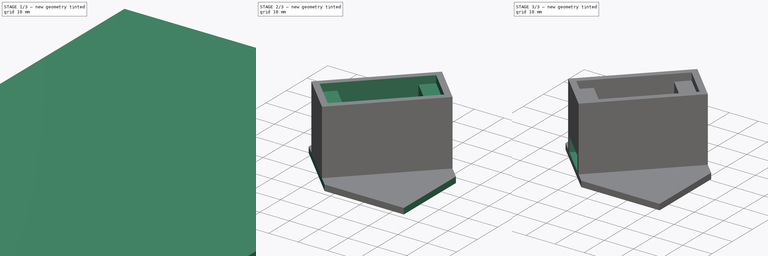
[diagram: build sequence overview — one tinted view per stage of 3, left to right]
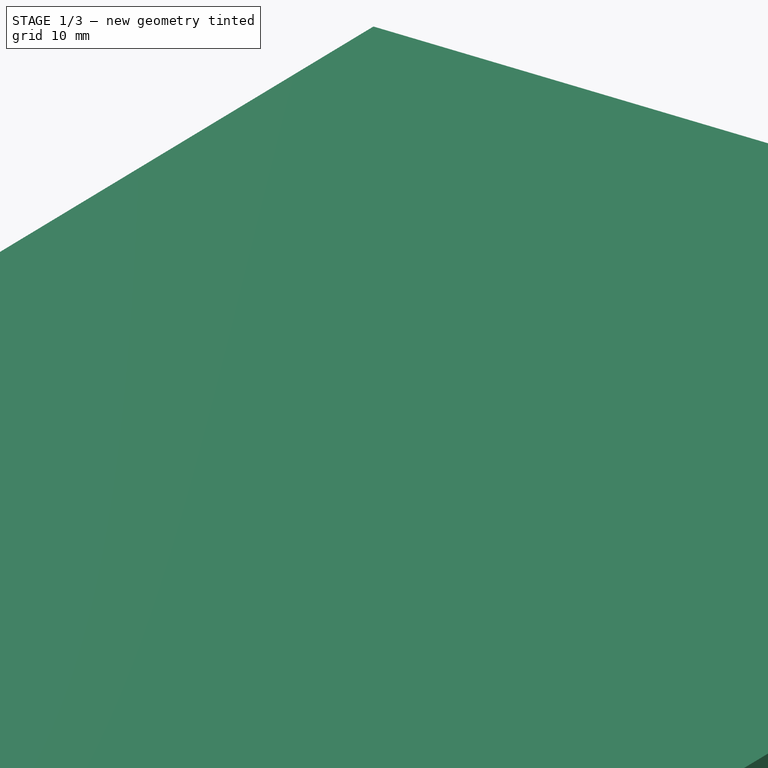
[diagram: stage 1 of 3 — iso view after this stage's code; geometry added in this stage tinted green]
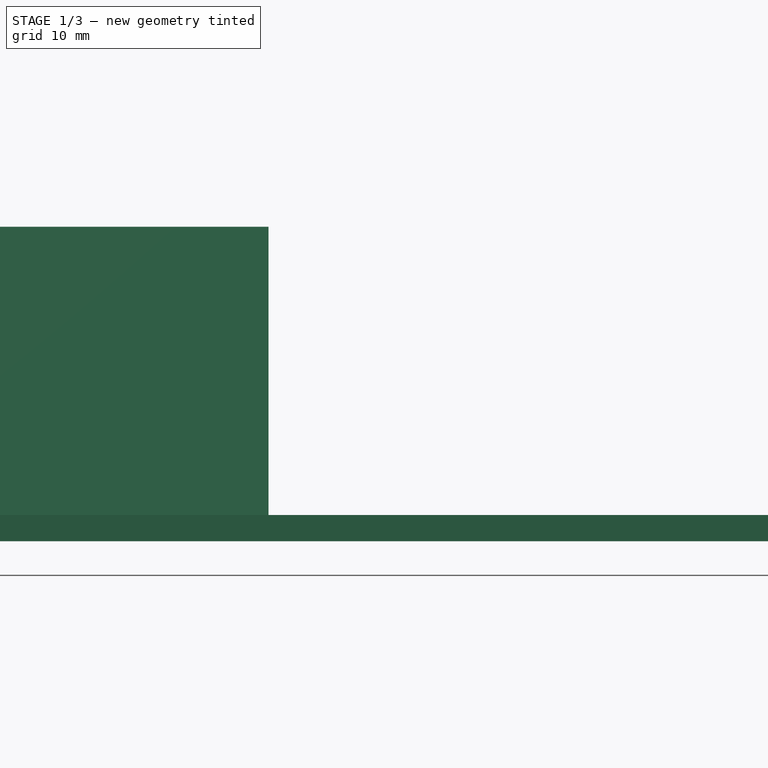
[diagram: stage 1 of 3 — front view after this stage's code; geometry added in this stage tinted green]
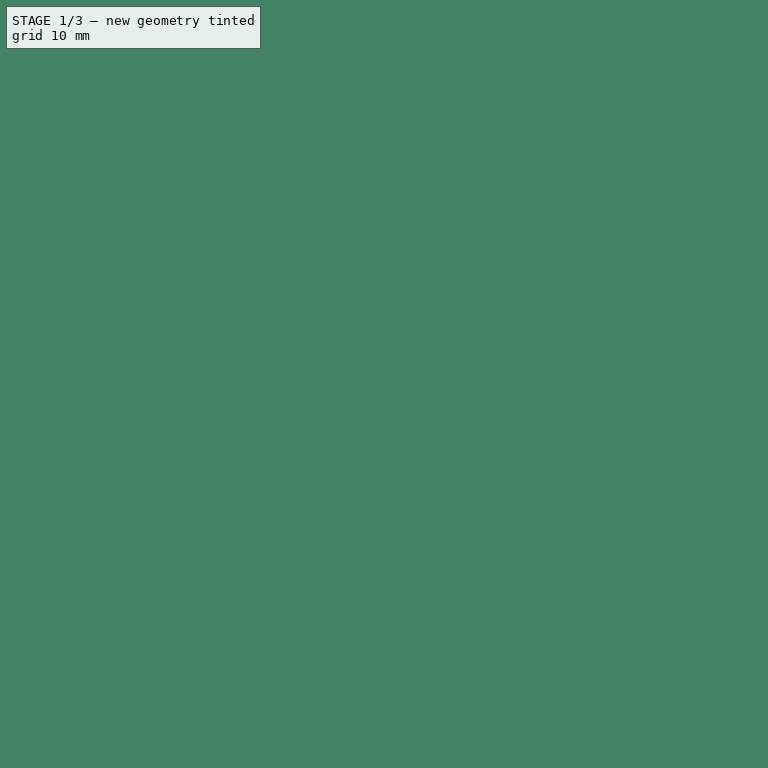
[diagram: stage 1 of 3 — top view after this stage's code; geometry added in this stage tinted green]
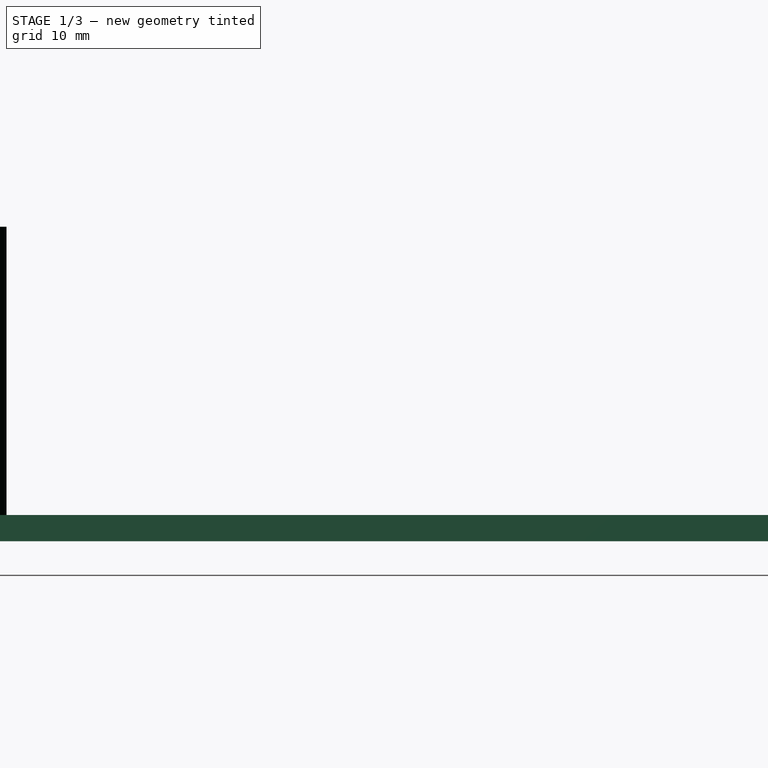
[diagram: stage 1 of 3 — right view after this stage's code; geometry added in this stage tinted green]
FCSTD DOCUMENT  (FreeCAD 0.19R)
Label: body
License: All rights reserved
LicenseURL: http://en.wikipedia.org/wiki/All_rights_reserved
objects: Sketcher::SketchObject×7, PartDesign::Pocket×4, PartDesign::Pad×3, PartDesign::Body×1
note: 22 computed .brp shape members not serialized (recipe doc carries the construction recipe); baked Part::Feature solids carry a one-line shape summary decoded from their .brp

FEATURE [Sketcher::SketchObject] Sketch
  MapMode = 5
  Support = -> [XY_Plane]
  sketch-geometry (4):
    g0: LineSegment StartX=0 StartY=140 StartZ=0 EndX=100 EndY=140 EndZ=0
    g1: LineSegment StartX=100 StartY=140 StartZ=0 EndX=100 EndY=0 EndZ=0
    g2: LineSegment StartX=100 StartY=0 StartZ=0 EndX=0 EndY=0 EndZ=0
    g3: LineSegment StartX=0 StartY=0 StartZ=0 EndX=0 EndY=140 EndZ=0
  constraints (11):
    c: Coincident(g0,g1)
    c: Coincident(g1,g2)
    c: Coincident(g2,g3)
    c: Coincident(g3,g0)
    c: Horizontal(g0)
    c: Horizontal(g2)
    c: Vertical(g1)
    c: Vertical(g3)
    c: DistanceY(g1,g1) = 140
    c: DistanceX(g0,g0) = 100
    c: Coincident(g2,g-1)
FEATURE [PartDesign::Pad] Pad
  Length = 2
  Length2 = 100
  Profile = -> Sketch
  Type = 0
FEATURE [Sketcher::SketchObject] Sketch001
  MapMode = 5
  Placement = pos=(0,0,2) rot=(0,0,1;0rad)
  Support = -> [Pad]
  sketch-geometry (6):
    g0: LineSegment StartX=3 StartY=15.0208 StartZ=0 EndX=29.163 EndY=41.1838 EndZ=0
    g1: LineSegment StartX=29.163 StartY=41.1838 StartZ=0 EndX=41.1838 EndY=29.163 EndZ=0
    g2: LineSegment StartX=41.1838 StartY=29.163 StartZ=0 EndX=15.0208 EndY=3 EndZ=0
    g3: LineSegment StartX=15.0208 StartY=3 StartZ=0 EndX=3 EndY=15.0208 EndZ=0
    g4: LineSegment [constr] StartX=3 StartY=15.0208 StartZ=0 EndX=0 EndY=15.0208 EndZ=0
    g5: LineSegment [constr] StartX=15.0208 StartY=3 StartZ=0 EndX=15.0208 EndY=0 EndZ=0
  constraints (18):
    c: Coincident(g0,g1)
    c: Coincident(g1,g2)
    c: Coincident(g2,g3)
    c: Coincident(g3,g0)
    c: Parallel(g3,g1)
    c: Parallel(g2,g0)
    c: Perpendicular(g1,g2)
    c: Distance(g2) = 37
    c: Distance(g3) = 17
    c: Coincident(g4,g0)
    c: PointOnObject(g4,g-2)
    c: Horizontal(g4)
    c: Coincident(g5,g2)
    c: PointOnObject(g5,g-1)
    c: Vertical(g5)
    c: Equal(g5,g4)
    c: DistanceX(g4,g4) = 3
    c: Angle(g-2,g3) = 0.785398
FEATURE [PartDesign::Pad] Pad001
  BaseFeature = -> Pad
  Length = 22
  Length2 = 100
  Profile = -> Sketch001
  Type = 0
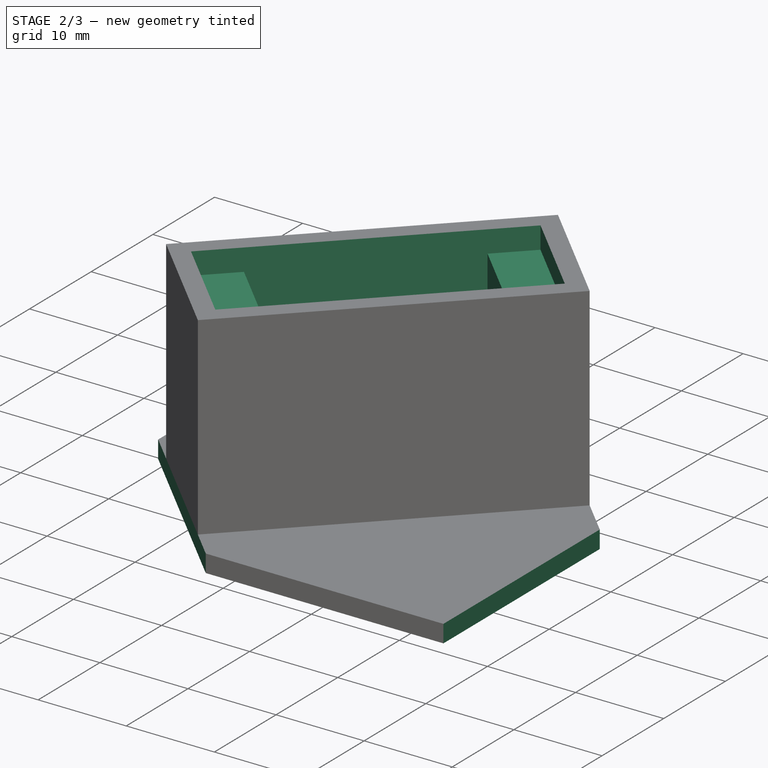
[diagram: stage 2 of 3 — iso view after this stage's code; geometry added in this stage tinted green]
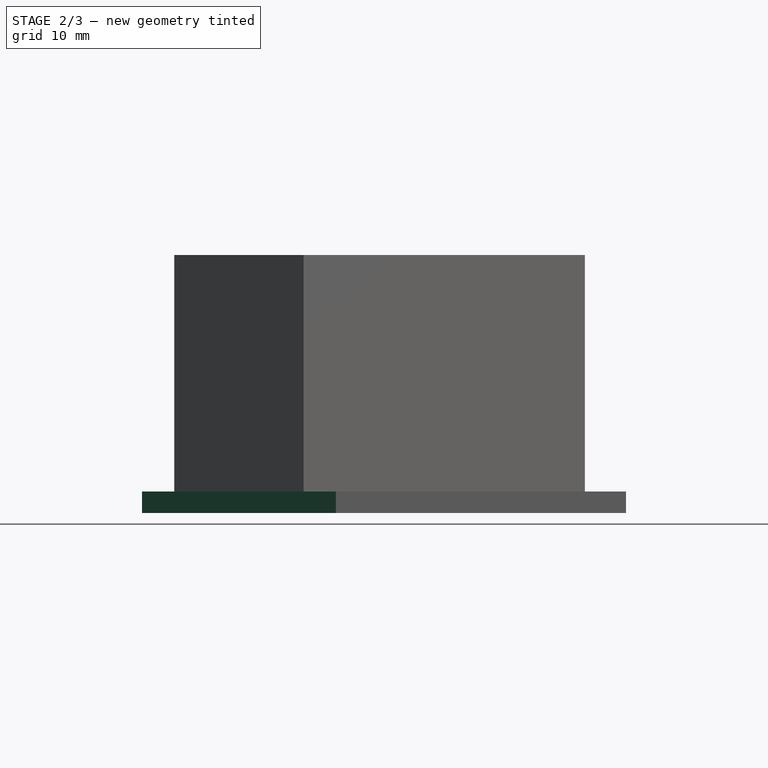
[diagram: stage 2 of 3 — front view after this stage's code; geometry added in this stage tinted green]
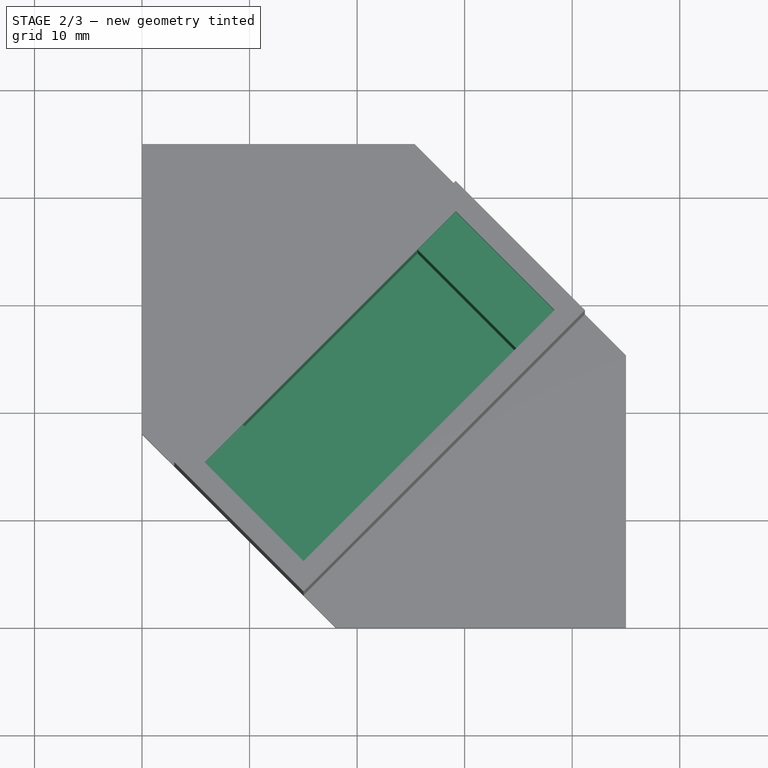
[diagram: stage 2 of 3 — top view after this stage's code; geometry added in this stage tinted green]
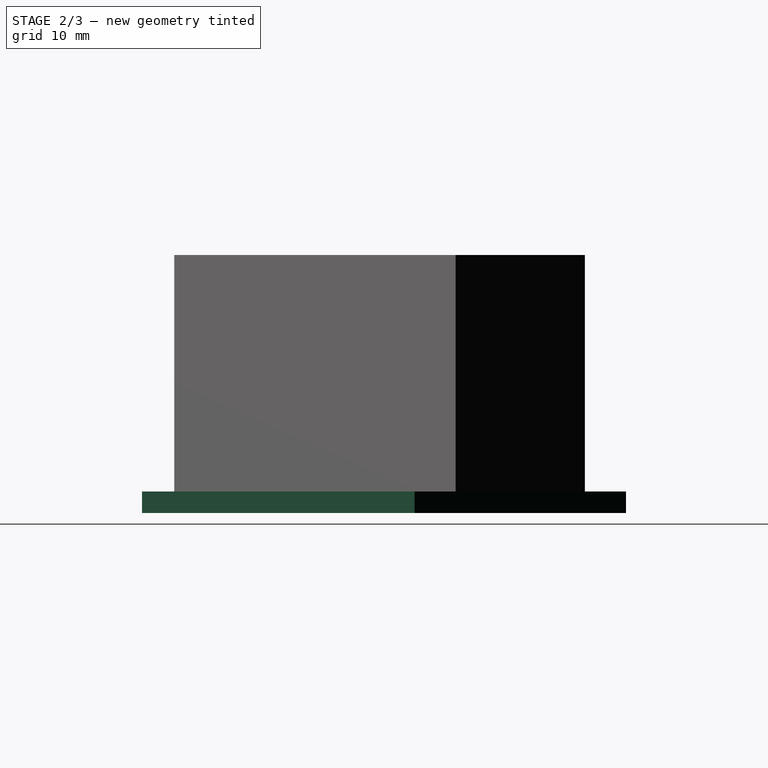
[diagram: stage 2 of 3 — right view after this stage's code; geometry added in this stage tinted green]
FEATURE [Sketcher::SketchObject] Sketch002
  ExternalGeometry = -> [Pad001]
  MapMode = 5
  Placement = pos=(0,0,24) rot=(0,0,1;0rad)
  Support = -> [Pad001]
  sketch-geometry (8):
    g0: LineSegment StartX=5.82843 StartY=15.0208 StartZ=0 EndX=29.163 EndY=38.3553 EndZ=0
    g1: LineSegment StartX=29.163 StartY=38.3553 StartZ=0 EndX=38.3553 EndY=29.163 EndZ=0
    g2: LineSegment StartX=38.3553 StartY=29.163 StartZ=0 EndX=15.0208 EndY=5.82843 EndZ=0
    g3: LineSegment StartX=15.0208 StartY=5.82843 StartZ=0 EndX=5.82843 EndY=15.0208 EndZ=0
    g4: LineSegment [constr] StartX=5.82843 StartY=15.0208 StartZ=0 EndX=4.41421 EndY=16.435 EndZ=0
    g5: LineSegment [constr] StartX=5.82843 StartY=15.0208 StartZ=0 EndX=4.41421 EndY=13.6066 EndZ=0
    g6: LineSegment [constr] StartX=38.3553 StartY=29.163 StartZ=0 EndX=39.7696 EndY=30.5772 EndZ=0
    g7: LineSegment [constr] StartX=38.3553 StartY=29.163 StartZ=0 EndX=39.7696 EndY=27.7487 EndZ=0
  constraints (24):
    c: Coincident(g0,g1)
    c: Coincident(g1,g2)
    c: Coincident(g2,g3)
    c: Coincident(g3,g0)
    c: Parallel(g2,g0)
    c: Parallel(g0,g-4)
    c: Parallel(g1,g3)
    c: Parallel(g3,g-3)
    c: Coincident(g4,g0)
    c: PointOnObject(g4,g-4)
    c: Coincident(g5,g0)
    c: PointOnObject(g5,g-3)
    c: Coincident(g6,g1)
    c: PointOnObject(g6,g-5)
    c: Coincident(g7,g1)
    c: PointOnObject(g7,g-6)
    c: Parallel(g7,g4)
    c: Parallel(g4,g-3)
    c: Parallel(g5,g6)
    c: Parallel(g6,g-4)
    c: Equal(g5,g4)
    c: Equal(g4,g7)
    c: Equal(g7,g6)
    c: Distance(g4) = 2
FEATURE [PartDesign::Pocket] Pocket
  BaseFeature = -> Pad001
  Length = 2.5
  Length2 = 100
  Profile = -> Sketch002
  Type = 0
FEATURE [Sketcher::SketchObject] Sketch003
  ExternalGeometry = -> [Pocket]
  MapMode = 5
  Placement = pos=(0,0,21.5) rot=(0,0,1;0rad)
  Support = -> [Pocket]
  sketch-geometry (4):
    g0: LineSegment StartX=9.36396 StartY=18.5563 StartZ=0 EndX=25.6274 EndY=34.8198 EndZ=0
    g1: LineSegment StartX=25.6274 StartY=34.8198 StartZ=0 EndX=34.8198 EndY=25.6274 EndZ=0
    g2: LineSegment StartX=34.8198 StartY=25.6274 StartZ=0 EndX=18.5563 EndY=9.36396 EndZ=0
    g3: LineSegment StartX=18.5563 StartY=9.36396 StartZ=0 EndX=9.36396 EndY=18.5563 EndZ=0
  constraints (12):
    c: PointOnObject(g0,g-3)
    c: PointOnObject(g0,g-3)
    c: Coincident(g0,g1)
    c: PointOnObject(g1,g-4)
    c: Coincident(g1,g2)
    c: PointOnObject(g2,g-4)
    c: Coincident(g2,g3)
    c: Coincident(g3,g0)
    c: Parallel(g1,g3)
    c: Parallel(g3,g-5)
    c: Distance(g0) = 23
    c: Distance(g0,g-5) = 5
FEATURE [PartDesign::Pocket] Pocket001
  BaseFeature = -> Pocket
  Length = 19.5
  Length2 = 100
  Profile = -> Sketch003
  Type = 0
FEATURE [Sketcher::SketchObject] Sketch004
  ExternalGeometry = -> [Pocket001]
  MapMode = 5
  Placement = pos=(0,0,2) rot=(0,0,1;0rad)
  Support = -> [Pocket001]
  sketch-geometry (10):
    g0: LineSegment StartX=-2.51886 StartY=20.5397 StartZ=0 EndX=19.6976 EndY=-1.67683 EndZ=0
    g1: LineSegment StartX=19.6976 StartY=-1.67683 StartZ=0 EndX=-2.51886 EndY=-1.67683 EndZ=0
    g2: LineSegment StartX=-2.51886 StartY=-1.67683 StartZ=0 EndX=-2.51886 EndY=20.5397 EndZ=0
    g3: LineSegment StartX=-7.2577 StartY=45 StartZ=0 EndX=25.3467 EndY=45 EndZ=0
    g4: LineSegment StartX=25.3467 StartY=45 StartZ=0 EndX=45 EndY=25.3467 EndZ=0
    g5: LineSegment StartX=45 StartY=25.3467 StartZ=0 EndX=45 EndY=-9.12884 EndZ=0
    g6: LineSegment StartX=45 StartY=-9.12884 StartZ=0 EndX=123.674 EndY=-9.12884 EndZ=0
    g7: LineSegment StartX=123.674 StartY=-9.12884 StartZ=0 EndX=123.674 EndY=160.159 EndZ=0
    g8: LineSegment StartX=123.674 StartY=160.159 StartZ=0 EndX=-17.6399 EndY=152.95 EndZ=0
    g9: LineSegment StartX=-17.6399 StartY=152.95 StartZ=0 EndX=-7.2577 EndY=45 EndZ=0
  constraints (22):
    c: Coincident(g0,g1)
    c: Horizontal(g1)
    c: Coincident(g1,g2)
    c: Coincident(g2,g0)
    c: Vertical(g2)
    c: PointOnObject(g-3,g0)
    c: PointOnObject(g-3,g0)
    c: Horizontal(g3)
    c: Coincident(g3,g4)
    c: Coincident(g4,g5)
    c: Vertical(g5)
    c: Coincident(g5,g6)
    c: Horizontal(g6)
    c: Coincident(g6,g7)
    c: Vertical(g7)
    c: Coincident(g7,g8)
    c: Coincident(g8,g9)
    c: Coincident(g9,g3)
    c: DistanceY(g-1,g3) = 45
    c: Parallel(g-4,g4)
    c: DistanceX(g-2,g5) = 45
    c: PointOnObject(g-4,g4)
FEATURE [PartDesign::Pocket] Pocket002
  BaseFeature = -> Pocket001
  Length = 5
  Length2 = 100
  Profile = -> Sketch004
  Type = 1
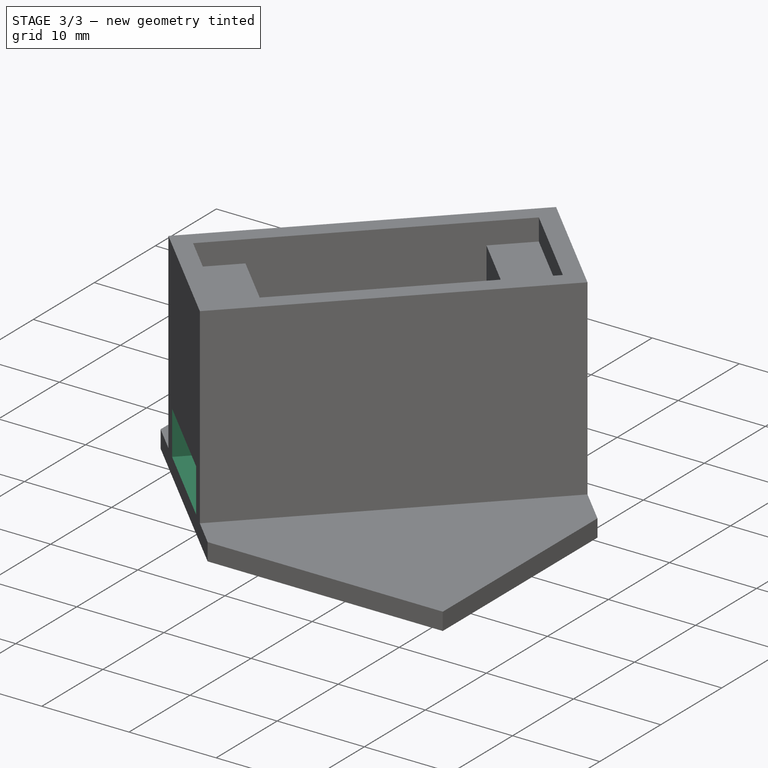
[diagram: stage 3 of 3 — iso view after this stage's code; geometry added in this stage tinted green]
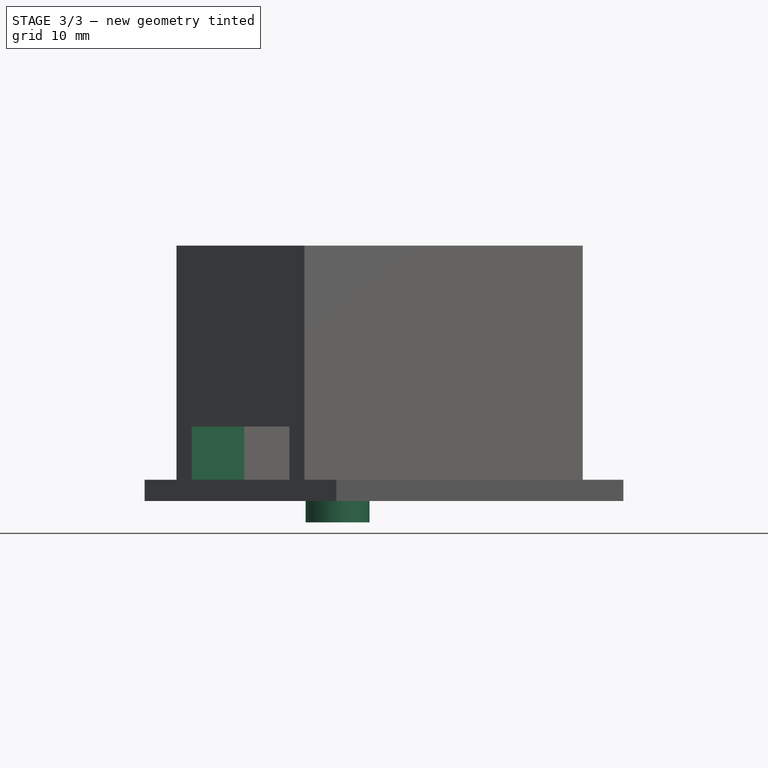
[diagram: stage 3 of 3 — front view after this stage's code; geometry added in this stage tinted green]
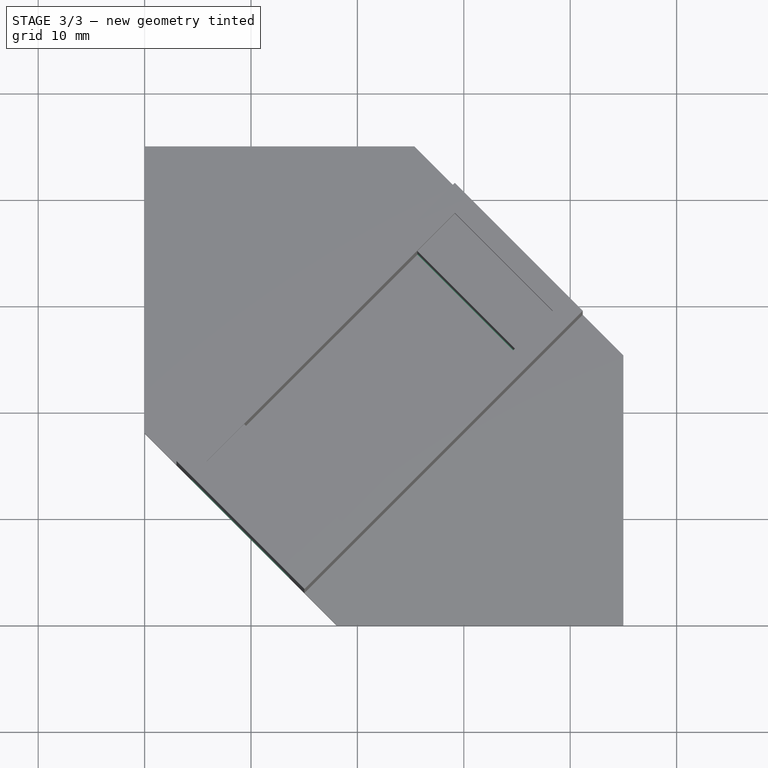
[diagram: stage 3 of 3 — top view after this stage's code; geometry added in this stage tinted green]
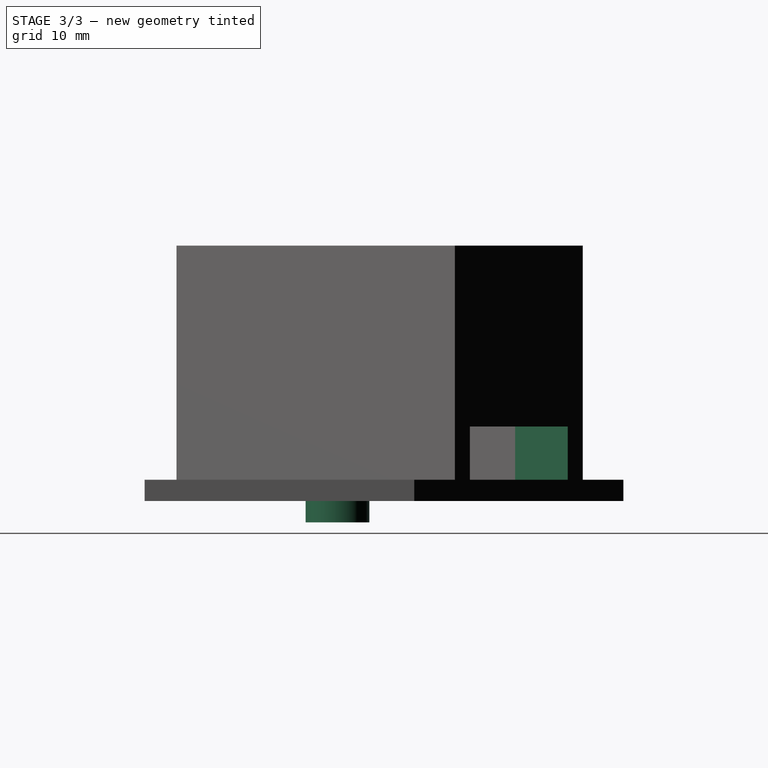
[diagram: stage 3 of 3 — right view after this stage's code; geometry added in this stage tinted green]
FEATURE [Sketcher::SketchObject] Sketch005
  ExternalGeometry = -> [Pocket002]
  MapMode = 5
  Placement = pos=(0,0,0) rot=(1,0,0;3.14159rad)
  Support = -> [Pocket002]
  sketch-geometry (4):
    g0: Circle CenterX=18.1321 CenterY=-18.1321 CenterZ=0 NormalX=0 NormalY=0 NormalZ=1 AngleXU=0 Radius=3
    g1: LineSegment [constr] StartX=9.36396 StartY=-18.5563 StartZ=0 EndX=13.9602 EndY=-13.9602 EndZ=0
    g2: LineSegment [constr] StartX=13.9602 StartY=-13.9602 StartZ=0 EndX=18.5563 EndY=-9.36396 EndZ=0
    g3: LineSegment [constr] StartX=13.9602 StartY=-13.9602 StartZ=0 EndX=18.1321 EndY=-18.1321 EndZ=0
  constraints (10):
    c: Radius(g0) = 3
    c: Coincident(g1,g-4)
    c: PointOnObject(g1,g-4)
    c: Coincident(g2,g1)
    c: Coincident(g2,g-4)
    c: Coincident(g3,g1)
    c: Perpendicular(g1,g3)
    c: Equal(g2,g1)
    c: Distance(g3) = 5.9
    c: Coincident(g0,g3)
FEATURE [PartDesign::Pad] Pad002
  BaseFeature = -> Pocket002
  Length = 2
  Length2 = 100
  Profile = -> Sketch005
  Type = 0
FEATURE [Sketcher::SketchObject] Sketch006
  ExternalGeometry = -> [Pad002]
  MapMode = 5
  Placement = pos=(9.01041,9.01041,0) rot=(0.862856,-0.357407,-0.357407;1.71777rad)
  Support = -> [Pad002]
  sketch-geometry (4):
    g0: LineSegment StartX=-6.5 StartY=7 StartZ=0 EndX=6.5 EndY=7 EndZ=0
    g1: LineSegment StartX=6.5 StartY=7 StartZ=0 EndX=6.5 EndY=2 EndZ=0
    g2: LineSegment StartX=6.5 StartY=2 StartZ=0 EndX=-6.5 EndY=2 EndZ=0
    g3: LineSegment StartX=-6.5 StartY=2 StartZ=0 EndX=-6.5 EndY=7 EndZ=0
  constraints (10):
    c: Coincident(g0,g1)
    c: Coincident(g1,g2)
    c: Coincident(g2,g3)
    c: Coincident(g3,g0)
    c: Horizontal(g0)
    c: Vertical(g1)
    c: Vertical(g3)
    c: Coincident(g1,g-4)
    c: Coincident(g2,g-3)
    c: DistanceY(g1,g1) = 5
FEATURE [PartDesign::Pocket] Pocket003
  BaseFeature = -> Pad002
  Length = 7
  Length2 = 100
  Profile = -> Sketch006
  Type = 1
FEATURE [PartDesign::Body] Body
  Group = -> [Sketch,Pad,Sketch001,Pad001,Sketch002,Pocket,Sketch003,Pocket001,Sketch004,Pocket002,Sketch005,Pad002,Sketch006,Pocket003]
  Origin = -> Origin
  Tip = -> Pocket003
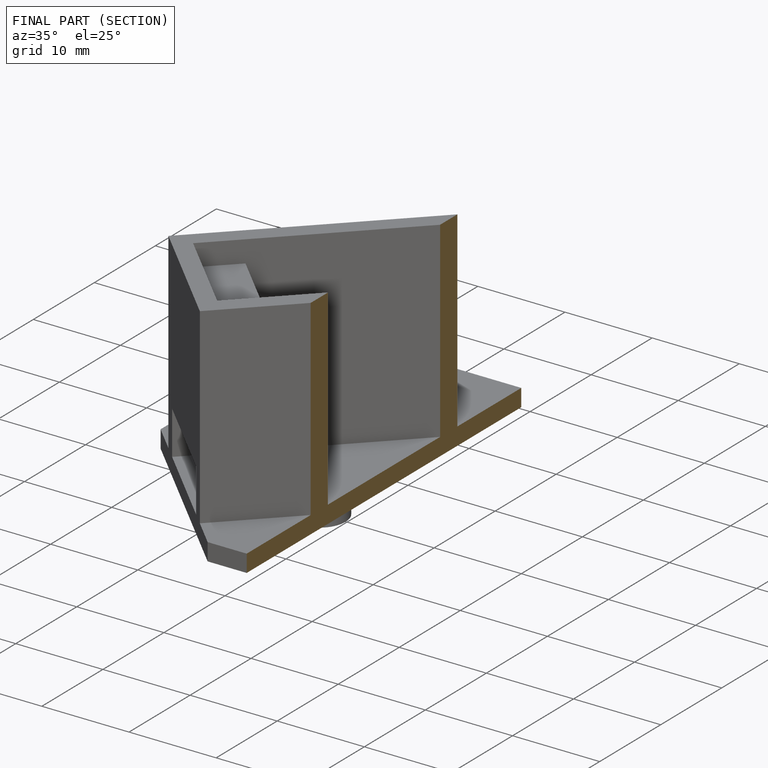
[diagram: finished part — half-section view (interior)]
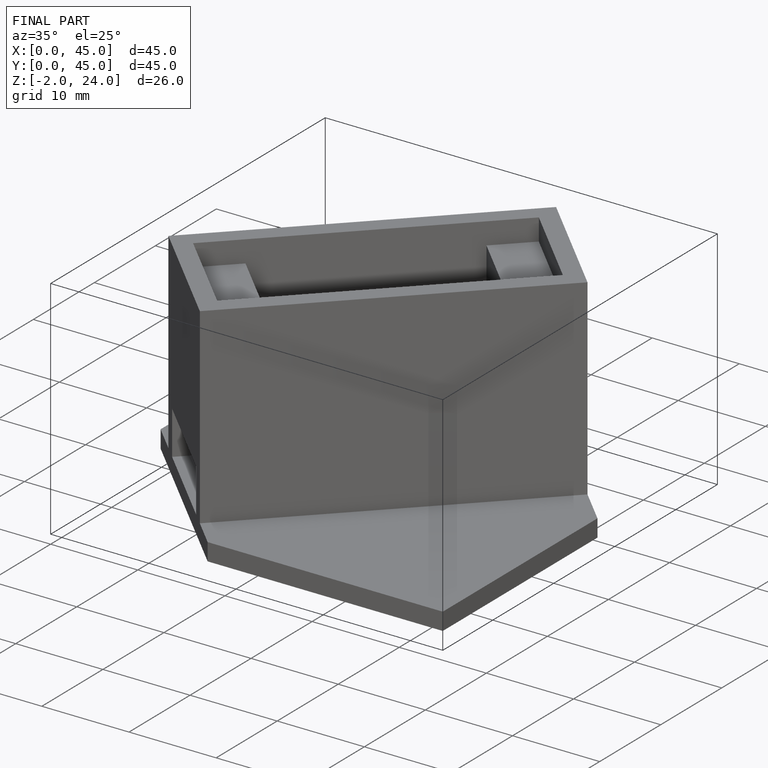
[diagram: finished part — iso view with bounding-box wireframe]
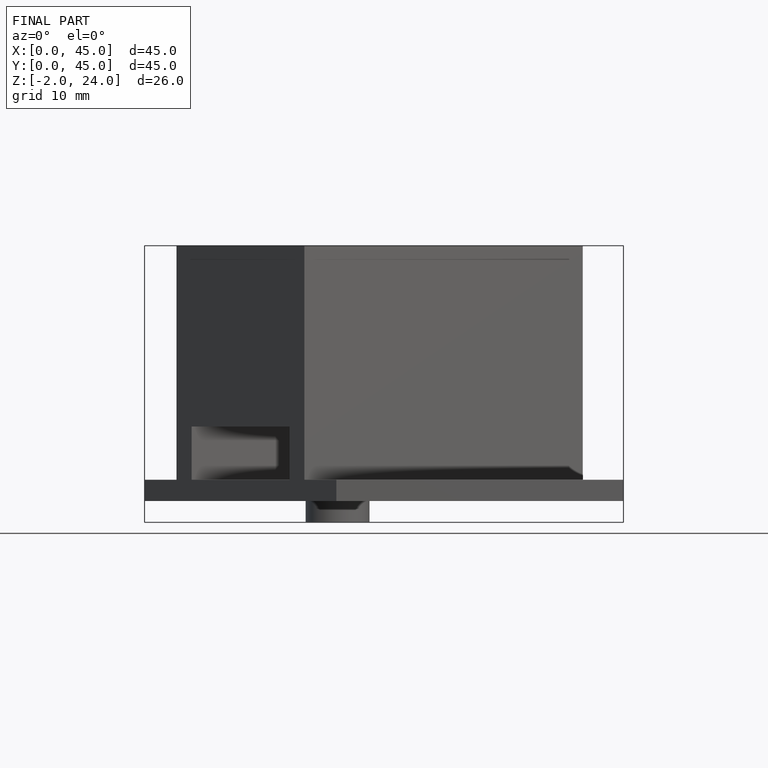
[diagram: finished part — front view with bounding-box wireframe]
